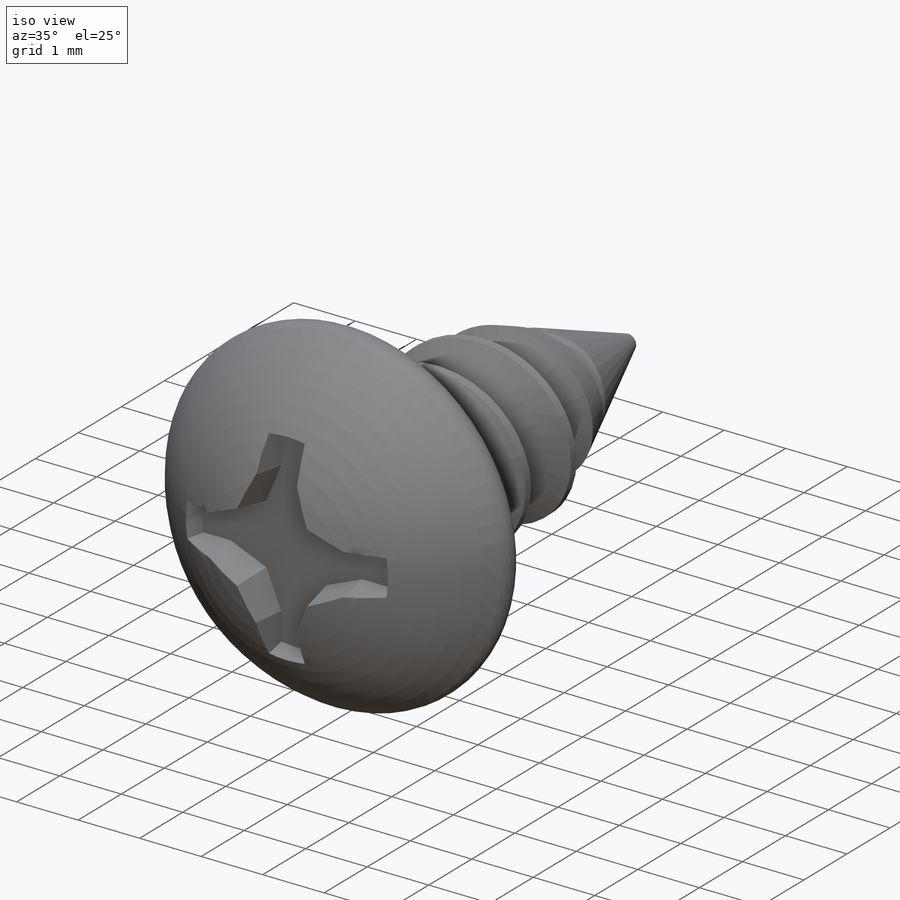
[diagram: iso view]
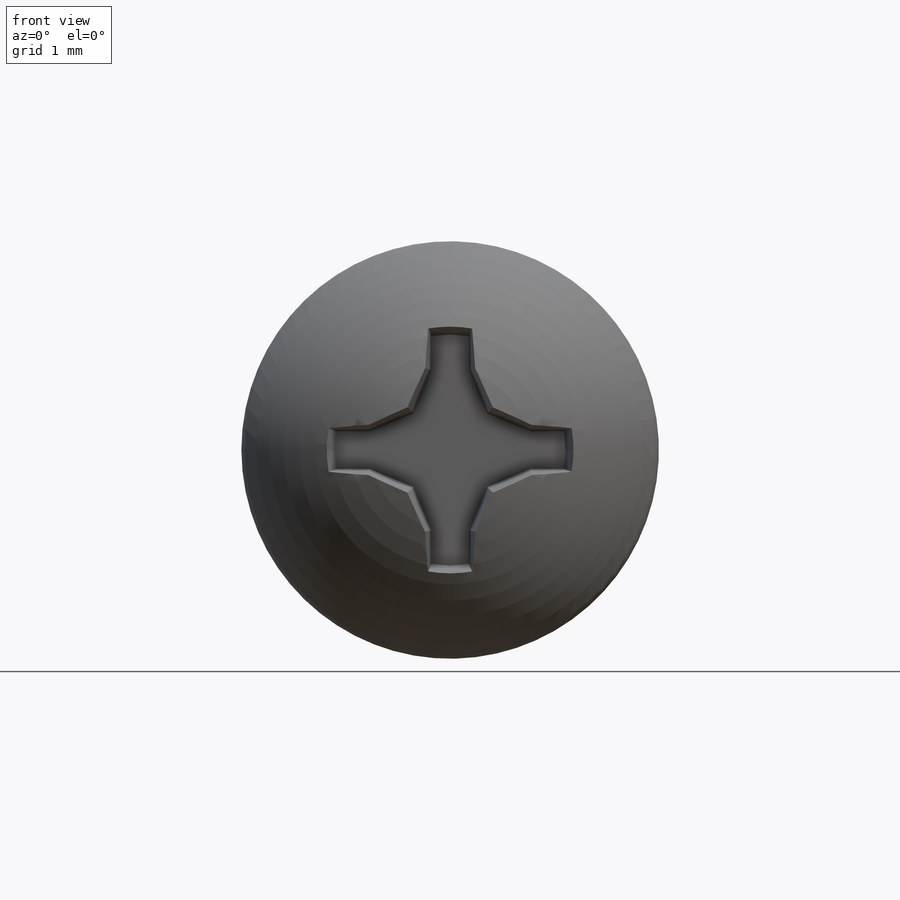
[diagram: front view]
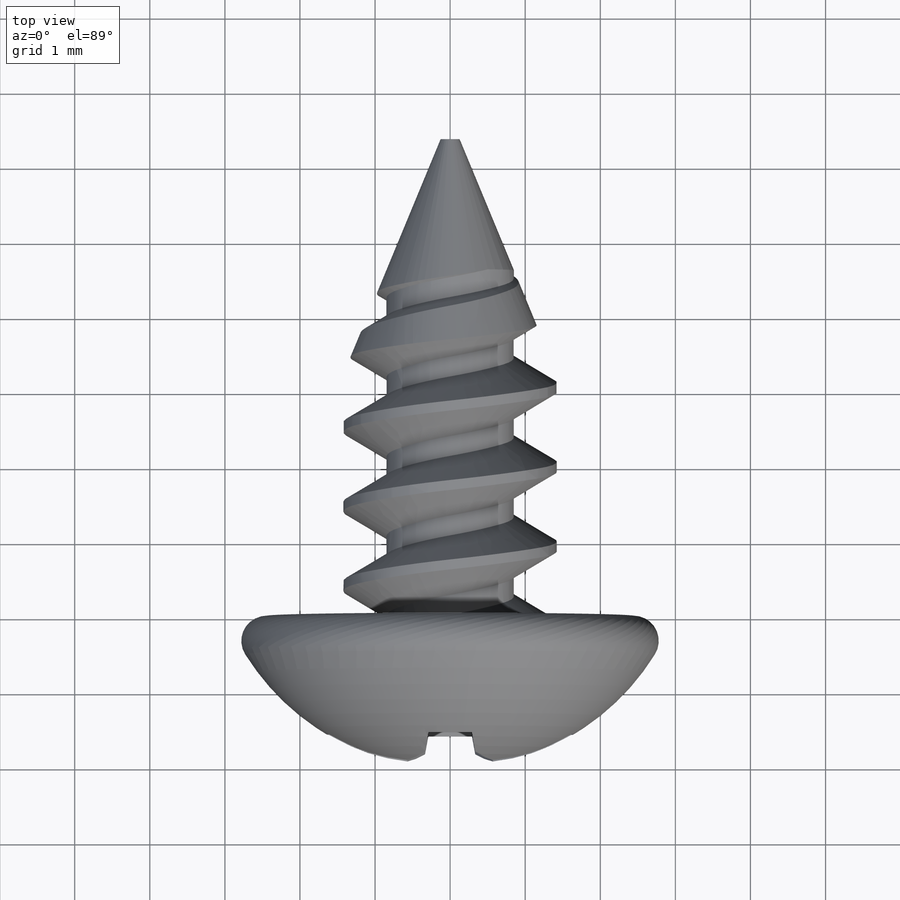
[diagram: top view]
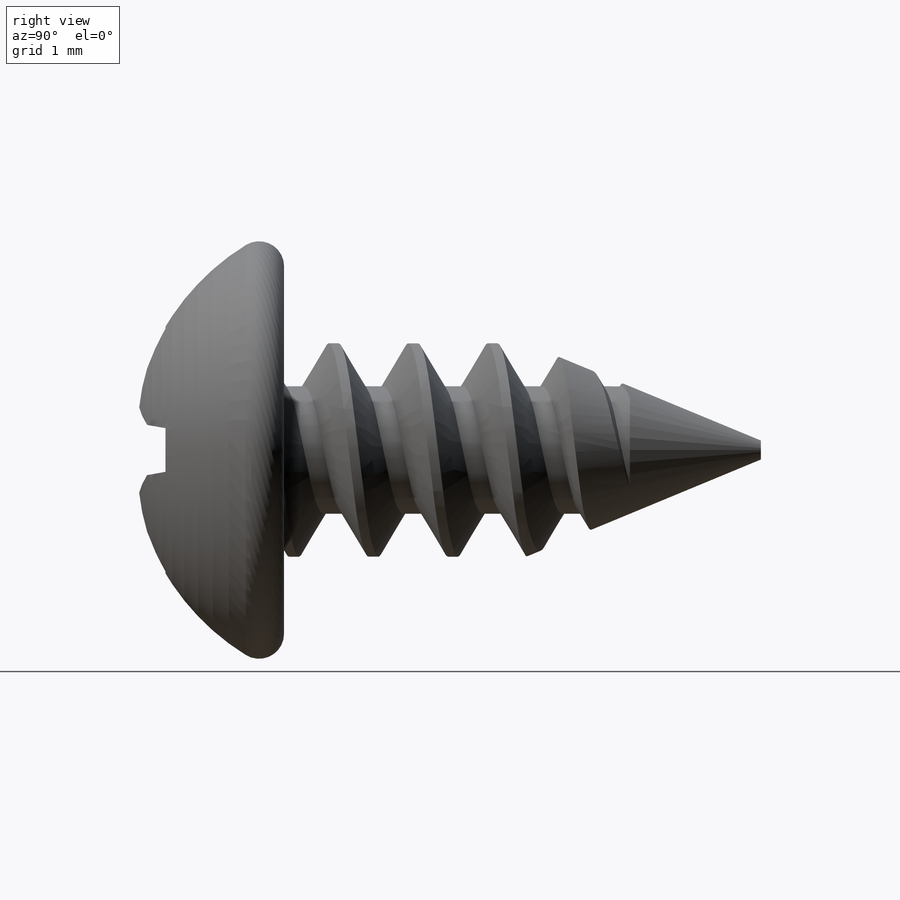
[diagram: right view]
SOLIDWORKS PART (.sldprt)
format: sldprt  version: not decoded by parser v0  size: 502,272 bytes
history: native  units: mm
features: sketch x7, plane x2, cut_revolve x2, pattern_circular x2, material x1, extrude x1, helix x1, revolve x1, sweep x1, pattern_linear x1, cut_extrude x1 (+14 scaffold rows collapsed)
feature tree (34):
  scaffold x14  (default folders/planes/origin — collapsed)
  material  "Matériau <non spécifié>"
  sketch  "Sketch1"  dims[Washer OD=8.3312mm Head Dia=5.5626mm Hex=6.35mm]
  extrude  "Extrude3"  Depth=2.032mm Head Ht=2.032mm
  plane  "Plane1"  Offset=0mm
  sketch  "Sketch11"  dims[c1.D1=0.254mm c1.D2=~1.642533mm c1.D3=~1.947333mm c2.D2=~1.66218mm c3.D2=5.0deg c3.D1=~3.294374mm c4.D1=100.0deg c5.D1=0.254mm c5.D2=~0.420914mm c5.D3=2.9464mm c6.D1=2.9464mm c7.D1=82.0deg c8.D1=0.508mm c8.D2=0.254mm c8.D3=0.254mm c8.D4=0.254mm]
  cut_revolve  "Cut-Revolve3"  Angle=360deg
  sketch  "Sketch14"  dims[c1.D1=~0.564716mm c2.D1=60.0deg c2.Pitch=~1.058333mm c2.D3=~0.264583mm c2.D4=~0.132292mm c2.D5=2.0701mm c2.Major Dia=6.3754mm c2.Screw Dia=4.826mm c3.Screw Dia=~4.656881mm c4.Screw Dia=2.8448mm]
  plane  "Plane2"
  sketch  "Sketch15"
  helix  "Helix/Spiral1"  Pitch=1.5875mm
  sketch  "Sketch16"  dims[Body Length=6.35mm]
  revolve  "Revolve1"  Angle=360deg
  sweep  "Sweep1"
  pattern_linear  "LPattern3"  Count1=5 Count2=2 Spacing1=1.058333mm Spacing2=1.058333mm
  sketch  "Sketch13"  dims[c1.D1=~1.645991mm c2.D1=25.0deg c2.D2=4.1656mm c2.D3=38.1mm c3.D1=0.127mm c3.D2=~1.58056mm c4.D2=45.0deg c5.D2=~3.84166mm c6.D2=22.5deg c6.D3=2.54mm c6.D1=0.127mm]
  cut_revolve  "Cut-Revolve4"  Angle=360deg
  sketch  "Sketch12"  dims[c1.Cross Recess Dia=4.064mm c1.Phillips Dia=3.7084mm c1.Cross recess Width=0.7112mm c1.Phillips Width=0.7112mm c2.Phillips Width=~0.74168mm c2.D1=4.3942mm]
  cut_extrude  "Cut-Extrude3"  Depth=0.677333mm Phillips Depth=0.677333mm
  pattern_circular  "CirPattern1"  Count=4 Angle=360deg
  pattern_circular  "Draft2"  Angle=10deg  [1 undecoded]
decode coverage: 15 of 17 modeling features carry decoded parameters
note: ~ marks probable driven/reference dimensions
note: 1 parameter value undecoded
note: suppression state not decoded; provenance and decode notes live in map.json
